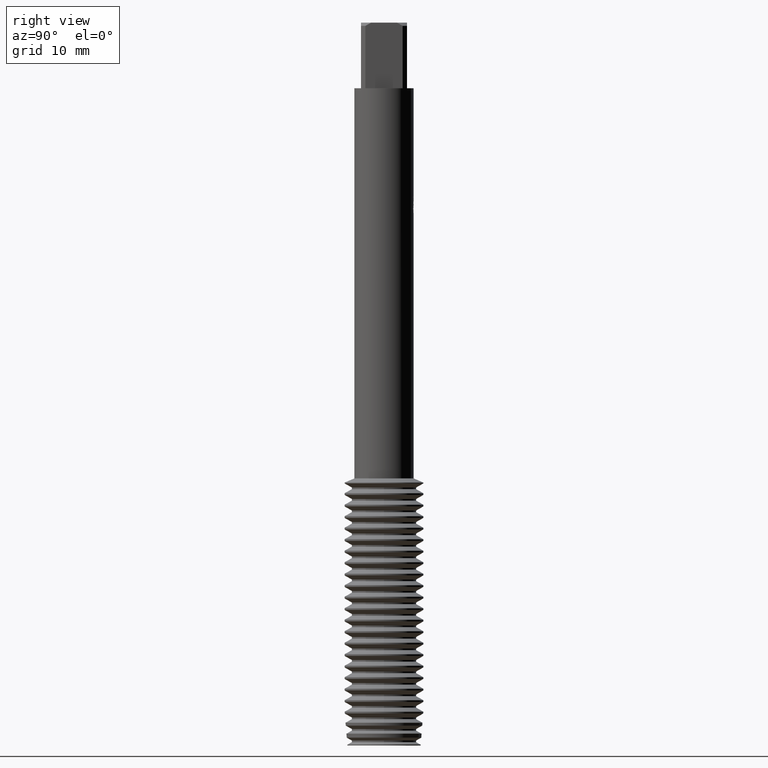
[diagram: clean part render]
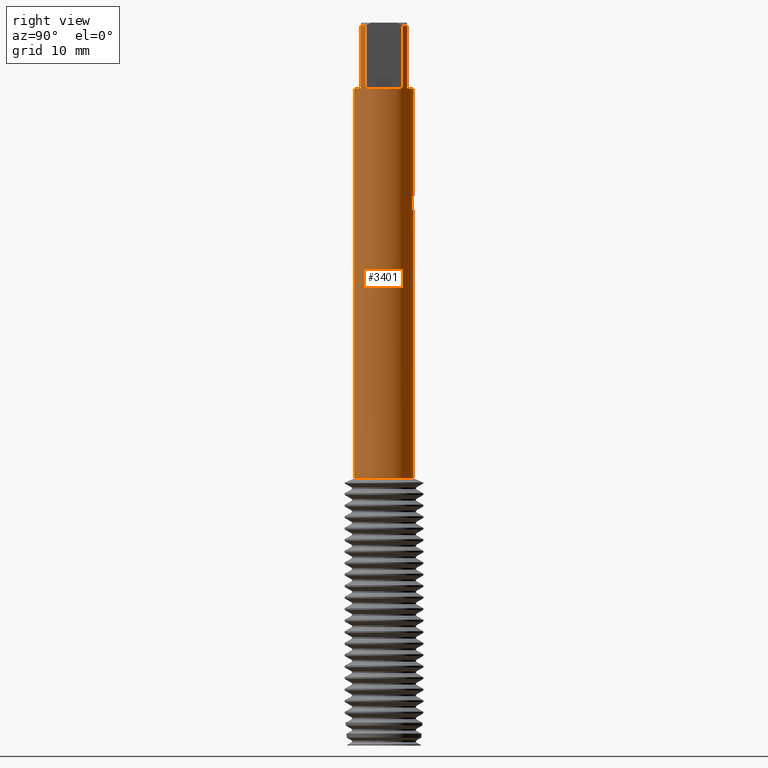
[diagram: same view with one face highlighted and labeled with its STEP entity id]
A machine part, right view. The second image highlights one B-rep face of the part: STEP entity #3401.
In plain terms, the highlighted cylindrical surface (edge-blend (fillet) strip) has radius 4.5 mm, axis along (-0, -0, 1).
Its self-contained STEP definition (entity closure, byte-faithful):
#1253=VERTEX_POINT('',#3570);
#1317=VERTEX_POINT('',#3644);
#1341=VERTEX_POINT('',#3670);
#1343=EDGE_CURVE('',#1533,#3211,#3672,.T.);
#1405=VERTEX_POINT('',#3740);
#1413=VERTEX_POINT('',#3748);
#1423=VERTEX_POINT('',#3759);
#1493=VERTEX_POINT('',#3834);
#1519=EDGE_CURVE('',#2913,#1413,#3862,.T.);
#1533=VERTEX_POINT('',#3877);
#1679=EDGE_CURVE('',#1953,#2821,#4042,.T.);
#1699=EDGE_CURVE('',#1341,#1533,#4063,.T.);
#1775=VERTEX_POINT('',#4147);
#1855=EDGE_CURVE('',#1493,#1775,#4237,.T.);
#1861=VERTEX_POINT('',#4244);
#1903=VERTEX_POINT('',#4291);
#1953=VERTEX_POINT('',#4346);
#2275=VERTEX_POINT('',#4699);
#2445=EDGE_CURVE('',#1775,#1423,#4880,.T.);
#2499=EDGE_CURVE('',#2757,#1413,#4941,.T.);
#2527=EDGE_CURVE('',#3211,#3405,#4969,.T.);
#2583=EDGE_CURVE('',#1253,#1861,#5030,.T.);
#2697=EDGE_CURVE('',#2275,#3277,#5159,.T.);
#2719=EDGE_CURVE('',#1861,#3249,#5181,.T.);
#2757=VERTEX_POINT('',#5223);
#2821=VERTEX_POINT('',#5294);
#2843=EDGE_CURVE('',#3277,#2913,#5316,.T.);
#2893=EDGE_CURVE('',#1253,#1903,#5375,.T.);
#2895=EDGE_CURVE('',#1903,#2757,#5377,.T.);
#2913=VERTEX_POINT('',#5397);
#2915=EDGE_CURVE('',#2821,#1493,#5399,.T.);
#3211=VERTEX_POINT('',#5723);
#3217=EDGE_CURVE('',#1423,#1317,#5730,.T.);
#3249=VERTEX_POINT('',#5765);
#3277=VERTEX_POINT('',#5795);
#3285=EDGE_CURVE('',#1405,#1341,#5804,.T.);
#3341=EDGE_CURVE('',#3249,#1405,#5865,.T.);
#3401=ADVANCED_FACE('',(#5934),#5935,.T.);
#3405=VERTEX_POINT('',#5939);
#3443=EDGE_CURVE('',#1317,#2275,#5977,.T.);
#3455=EDGE_CURVE('',#1953,#3405,#5990,.T.);
#3570=CARTESIAN_POINT('',(1.92777955702055E-015,4.5,-28.977922824093));
#3644=CARTESIAN_POINT('',(3.5,-2.82842712474619,-10.0));
#3670=CARTESIAN_POINT('',(1.20348905863192,4.33608280430082,-28.3111491302932));
#3672=B_SPLINE_CURVE_WITH_KNOTS('',3,(#6264,#6265,#6266,#6267,#6268,#6269),.UNSPECIFIED.,.F.,.F.,(4,2,4),(0.55661694981192,1.11323389962384,1.66927588158157),.UNSPECIFIED.);
#3740=CARTESIAN_POINT('',(0.78620470358306,4.43078798455352,-28.7328616612378));
#3748=CARTESIAN_POINT('',(5.5107285922007E-016,-4.5,-10.0));
#3759=CARTESIAN_POINT('',(3.5,2.82842712474619,-10.0));
#3834=CARTESIAN_POINT('',(2.82842712474619,3.5,-0.5));
#3862=CIRCLE('',#6577,4.5);
#3877=CARTESIAN_POINT('',(1.20348905863192,4.33608280430082,-26.7135435928339));
#4042=CIRCLE('',#6831,4.5);
#4063=LINE('',#6871,#6872);
#4147=CARTESIAN_POINT('',(3.5,2.82842712474619,-0.5));
#4237=CIRCLE('',#7093,4.5);
#4244=CARTESIAN_POINT('',(0.261092814332247,4.49241923047082,-28.9498496091205));
#4291=CARTESIAN_POINT('',(0.0,4.5,-69.3649147038914));
#4346=CARTESIAN_POINT('',(-5.5107285922007E-016,4.5,-10.0));
#4699=CARTESIAN_POINT('',(3.5,-2.82842712474619,-0.5));
#4880=LINE('',#8028,#8029);
#4941=LINE('',#8109,#8110);
#4969=B_SPLINE_CURVE_WITH_KNOTS('',3,(#8167,#8168,#8169,#8170,#8171,#8172,#8173,#8174,#8175,#8176,#8177,#8178,#8179,#8180,#8181,#8182,#8183,#8184,#8185,#8186,#8187,#8188,#8189,#8190,#8191,#8192,#8193),.UNSPECIFIED.,.F.,.F.,(4,2,3,2,2,2,2,2,2,2,2,2,4),(-0.488237494321567,-0.244118747160783,0.0,0.24411874716078,0.48823749432156,0.732868933443247,0.977500372564934,1.22127161368314,1.46504285480134,1.70906790328601,1.95309295177068,2.19711800025534,2.44114304874001),.UNSPECIFIED.);
#5030=B_SPLINE_CURVE_WITH_KNOTS('',3,(#8276,#8277,#8278,#8279,#8280,#8281,#8282,#8283,#8284,#8285,#8286,#8287,#8288,#8289),.UNSPECIFIED.,.F.,.F.,(4,2,2,2,2,2,4),(5.00928657264585,5.56602959440372,6.12289935657728,6.40133423766406,6.67976911875084,6.95779012540738,7.23581113206391),.UNSPECIFIED.);
#5159=CIRCLE('',#8453,4.5);
#5181=ELLIPSE('',#8482,13.715975580164,4.5);
#5223=CARTESIAN_POINT('',(5.5107285922007E-016,-4.5,-69.3649147038914));
#5294=CARTESIAN_POINT('',(2.82842712474619,3.5,-10.0));
#5316=LINE('',#8673,#8674);
#5375=LINE('',#8749,#8750);
#5377=CIRCLE('',#8753,4.5);
#5397=CARTESIAN_POINT('',(2.82842712474619,-3.5,-10.0));
#5399=LINE('',#8784,#8785);
#5723=CARTESIAN_POINT('',(0.719488553745928,4.44210943370699,-26.2500002491857));
#5730=CIRCLE('',#9258,4.5);
#5765=CARTESIAN_POINT('',(0.786204703583061,4.43078798455352,-27.4379038436482));
#5795=CARTESIAN_POINT('',(2.82842712474619,-3.5,-0.5));
#5804=B_SPLINE_CURVE_WITH_KNOTS('',3,(#9356,#9357,#9358,#9359,#9360,#9361),.UNSPECIFIED.,.F.,.F.,(4,2,4),(7.23581044552086,7.79185240870883,8.3484693391783),.UNSPECIFIED.);
#5865=LINE('',#9441,#9442);
#5934=FACE_OUTER_BOUND('',#9534,.T.);
#5935=CYLINDRICAL_SURFACE('',#9535,4.5);
#5939=CARTESIAN_POINT('',(-9.66146156737395E-015,4.5,-27.1709419305969));
#5977=LINE('',#9593,#9594);
#5990=LINE('',#9613,#9614);
#6264=CARTESIAN_POINT('',(1.32790171013553,4.29961359289636,-26.949499051033));
#6265=CARTESIAN_POINT('',(1.25288604636555,4.32278157191396,-26.7691154200329));
#6266=CARTESIAN_POINT('',(1.14027118351832,4.35516310459436,-26.6051449244708));
#6267=CARTESIAN_POINT('',(0.881384758979489,4.41483730983045,-26.3463526065749));
#6268=CARTESIAN_POINT('',(0.717429841534519,4.44615527664793,-26.2337793829887));
#6269=CARTESIAN_POINT('',(0.537062873222332,4.4678365536584,-26.1588108848587));
#6577=AXIS2_PLACEMENT_3D('',#10115,#10116,#10117);
#6831=AXIS2_PLACEMENT_3D('',#10355,#10356,#10357);
#6871=CARTESIAN_POINT('',(1.20348905863192,4.33608280430082,-27.5123463615635));
#6872=VECTOR('',#10381,1.0);
#7093=AXIS2_PLACEMENT_3D('',#10621,#10622,#10623);
#8028=CARTESIAN_POINT('',(3.5,2.82842712474619,-5.25));
#8029=VECTOR('',#11414,1.0);
#8109=CARTESIAN_POINT('',(5.5107285922007E-016,-4.5,-49.6824573519457));
#8110=VECTOR('',#11509,1.0);
#8167=CARTESIAN_POINT('',(0.598610493082054,4.46000734052894,-26.082236711173));
#8168=CARTESIAN_POINT('',(0.655861677259137,4.45232323667594,-26.1395499545912));
#8169=CARTESIAN_POINT('',(0.705567749493117,4.44446773270288,-26.2121492432381));
#8170=CARTESIAN_POINT('',(0.771571740116608,4.43348579996644,-26.3714202755976));
#8171=CARTESIAN_POINT('',(0.78786088306971,4.43049379064327,-26.4581048956078));
#8172=CARTESIAN_POINT('',(0.78786088306971,4.43049379064327,-26.5394778113281));
#8173=CARTESIAN_POINT('',(0.78786088306971,4.43049379064327,-26.6208507270484));
#8174=CARTESIAN_POINT('',(0.771571740116608,4.43348579996644,-26.7075353470586));
#8175=CARTESIAN_POINT('',(0.705567749493119,4.44446773270288,-26.8668063794181));
#8176=CARTESIAN_POINT('',(0.655861677259135,4.45232323667594,-26.939405668065));
#8177=CARTESIAN_POINT('',(0.541239071429477,4.4677075823407,-27.0541525227121));
#8178=CARTESIAN_POINT('',(0.468577077404,4.47625259584298,-27.1039697560256));
#8179=CARTESIAN_POINT('',(0.309153440232772,4.49008083772597,-27.170130310445));
#8180=CARTESIAN_POINT('',(0.222377597844716,4.49524166173767,-27.1864649424972));
#8181=CARTESIAN_POINT('',(0.0596564980879217,4.5003381889972,-27.1864649424972));
#8182=CARTESIAN_POINT('',(-0.026986801866637,4.5006247904204,-27.1702329320859));
#8183=CARTESIAN_POINT('',(-0.18633827630776,4.49684665499257,-27.1042445557697));
#8184=CARTESIAN_POINT('',(-0.259050734958625,4.49290602438602,-27.054491488258));
#8185=CARTESIAN_POINT('',(-0.373922504658752,4.48480776485445,-26.9396992737441));
#8186=CARTESIAN_POINT('',(-0.423740605016268,4.4801280654383,-26.8669685517597));
#8187=CARTESIAN_POINT('',(-0.489837971487065,4.47338376984478,-26.7075321781649));
#8188=CARTESIAN_POINT('',(-0.506113379268522,4.4714482270653,-26.6208194941563));
#8189=CARTESIAN_POINT('',(-0.506113379268522,4.4714482270653,-26.4581361284999));
#8190=CARTESIAN_POINT('',(-0.489837971487064,4.47338376984478,-26.3714234444913));
#8191=CARTESIAN_POINT('',(-0.423740605016268,4.4801280654383,-26.2119870708965));
#8192=CARTESIAN_POINT('',(-0.373922504658752,4.48480776485445,-26.1392563489121));
#8193=CARTESIAN_POINT('',(-0.316456735098648,4.4888590014402,-26.081830377642));
#8276=CARTESIAN_POINT('',(-1.37898170158697,4.28350434418926,-28.0751271965754));
#8277=CARTESIAN_POINT('',(-1.30401050073994,4.30763968568169,-28.2554290227717));
#8278=CARTESIAN_POINT('',(-1.19150514881565,4.34143094124777,-28.4192705231025));
#8279=CARTESIAN_POINT('',(-0.932859747393676,4.40425792748471,-28.6780135031786));
#8280=CARTESIAN_POINT('',(-0.768955753958504,4.43754641363356,-28.790648069192));
#8281=CARTESIAN_POINT('',(-0.498353399802766,4.47324509387064,-28.9032253728295));
#8282=CARTESIAN_POINT('',(-0.404091648536853,4.48283151844287,-28.9317231620603));
#8283=CARTESIAN_POINT('',(-0.214084281205442,4.49591330028805,-28.9691882523958));
#8284=CARTESIAN_POINT('',(-0.118336086251352,4.4994011344625,-28.9781451001578));
#8285=CARTESIAN_POINT('',(0.067146225504712,4.50045328753729,-28.9781451001578));
#8286=CARTESIAN_POINT('',(0.162791105789785,4.49805968638437,-28.9692143814867));
#8287=CARTESIAN_POINT('',(0.352656619267638,4.48716783676345,-28.9318200789286));
#8288=CARTESIAN_POINT('',(0.446879650707238,4.47867716616223,-28.9033664657591));
#8289=CARTESIAN_POINT('',(0.53706313935625,4.46783652166737,-28.8658822146561));
#8453=AXIS2_PLACEMENT_3D('',#11763,#11764,#11765);
#8482=AXIS2_PLACEMENT_3D('',#11779,#11780,#11781);
#8673=CARTESIAN_POINT('',(2.82842712474619,-3.5,-5.25));
#8674=VECTOR('',#11927,1.0);
#8749=CARTESIAN_POINT('',(-5.5107285922007E-016,4.5,-49.6824573519457));
#8750=VECTOR('',#12040,1.0);
#8753=AXIS2_PLACEMENT_3D('',#12041,#12042,#12043);
#8784=CARTESIAN_POINT('',(2.82842712474619,3.5,-5.25));
#8785=VECTOR('',#12072,1.0);
#9258=AXIS2_PLACEMENT_3D('',#12486,#12487,#12488);
#9356=CARTESIAN_POINT('',(0.537062893299679,4.46783655124497,-28.8658818237644));
#9357=CARTESIAN_POINT('',(0.717429855458743,4.44615527415191,-28.7909133281594));
#9358=CARTESIAN_POINT('',(0.881384767296869,4.41483730803448,-28.6783401083781));
#9359=CARTESIAN_POINT('',(1.14027118287006,4.35516310462244,-28.4195477992995));
#9360=CARTESIAN_POINT('',(1.25288604178808,4.32278157319009,-28.255577309398));
#9361=CARTESIAN_POINT('',(1.32790170293637,4.29961359511976,-28.0751936846334));
#9441=CARTESIAN_POINT('',(0.786204703583061,4.43078798455352,-28.085382752443));
#9442=VECTOR('',#12661,1.0);
#9534=EDGE_LOOP('',(#12777,#12778,#12779,#12780,#12781,#12782,#12783,#12784,#12785,#12786,#12787,#12788,#12789,#12790,#12791,#12792,#12793,#12794,#12795,#12796));
#9535=AXIS2_PLACEMENT_3D('',#12797,#12798,#12799);
#9593=CARTESIAN_POINT('',(3.5,-2.82842712474619,-5.25));
#9594=VECTOR('',#12825,1.0);
#9613=CARTESIAN_POINT('',(-5.5107285922007E-016,4.5,-49.6824573519457));
#9614=VECTOR('',#12839,1.0);
#10115=CARTESIAN_POINT('',(0.0,0.0,-10.0));
#10116=DIRECTION('',(0.0,0.0,-1.0));
#10117=DIRECTION('',(0.0,1.0,0.0));
#10355=CARTESIAN_POINT('',(0.0,0.0,-10.0));
#10356=DIRECTION('',(0.0,0.0,-1.0));
#10357=DIRECTION('',(0.0,1.0,0.0));
#10381=DIRECTION('',(-0.0,-0.0,1.0));
#10621=CARTESIAN_POINT('',(0.0,0.0,-0.5));
#10622=DIRECTION('',(0.0,0.0,-1.0));
#10623=DIRECTION('',(0.0,1.0,0.0));
#11414=DIRECTION('',(0.0,0.0,-1.0));
#11509=DIRECTION('',(-0.0,-0.0,1.0));
#11763=CARTESIAN_POINT('',(0.0,0.0,-0.5));
#11764=DIRECTION('',(0.0,0.0,-1.0));
#11765=DIRECTION('',(0.0,1.0,0.0));
#11779=CARTESIAN_POINT('',(0.0,0.0,-29.7016097255942));
#11780=DIRECTION('',(0.944648353914092,0.0,-0.328084573619969));
#11781=DIRECTION('',(0.328084573619968,-0.0,0.944648353914092));
#11927=DIRECTION('',(0.0,0.0,-1.0));
#12040=DIRECTION('',(0.0,0.0,-1.0));
#12041=CARTESIAN_POINT('',(0.0,0.0,-69.3649147038914));
#12042=DIRECTION('',(0.0,0.0,-1.0));
#12043=DIRECTION('',(0.0,1.0,0.0));
#12072=DIRECTION('',(-0.0,-0.0,1.0));
#12486=CARTESIAN_POINT('',(0.0,0.0,-10.0));
#12487=DIRECTION('',(0.0,0.0,-1.0));
#12488=DIRECTION('',(0.0,1.0,0.0));
#12661=DIRECTION('',(0.0,0.0,-1.0));
#12777=ORIENTED_EDGE('',*,*,#3455,.F.);
#12778=ORIENTED_EDGE('',*,*,#1679,.T.);
#12779=ORIENTED_EDGE('',*,*,#2915,.T.);
#12780=ORIENTED_EDGE('',*,*,#1855,.T.);
#12781=ORIENTED_EDGE('',*,*,#2445,.T.);
#12782=ORIENTED_EDGE('',*,*,#3217,.T.);
#12783=ORIENTED_EDGE('',*,*,#3443,.T.);
#12784=ORIENTED_EDGE('',*,*,#2697,.T.);
#12785=ORIENTED_EDGE('',*,*,#2843,.T.);
#12786=ORIENTED_EDGE('',*,*,#1519,.T.);
#12787=ORIENTED_EDGE('',*,*,#2499,.F.);
#12788=ORIENTED_EDGE('',*,*,#2895,.F.);
#12789=ORIENTED_EDGE('',*,*,#2893,.F.);
#12790=ORIENTED_EDGE('',*,*,#2583,.T.);
#12791=ORIENTED_EDGE('',*,*,#2719,.T.);
#12792=ORIENTED_EDGE('',*,*,#3341,.T.);
#12793=ORIENTED_EDGE('',*,*,#3285,.T.);
#12794=ORIENTED_EDGE('',*,*,#1699,.T.);
#12795=ORIENTED_EDGE('',*,*,#1343,.T.);
#12796=ORIENTED_EDGE('',*,*,#2527,.T.);
#12797=CARTESIAN_POINT('',(0.0,0.0,-49.6824573519457));
#12798=DIRECTION('',(-0.0,-0.0,1.0));
#12799=DIRECTION('',(0.0,1.0,0.0));
#12825=DIRECTION('',(-0.0,-0.0,1.0));
#12839=DIRECTION('',(0.0,0.0,-1.0));